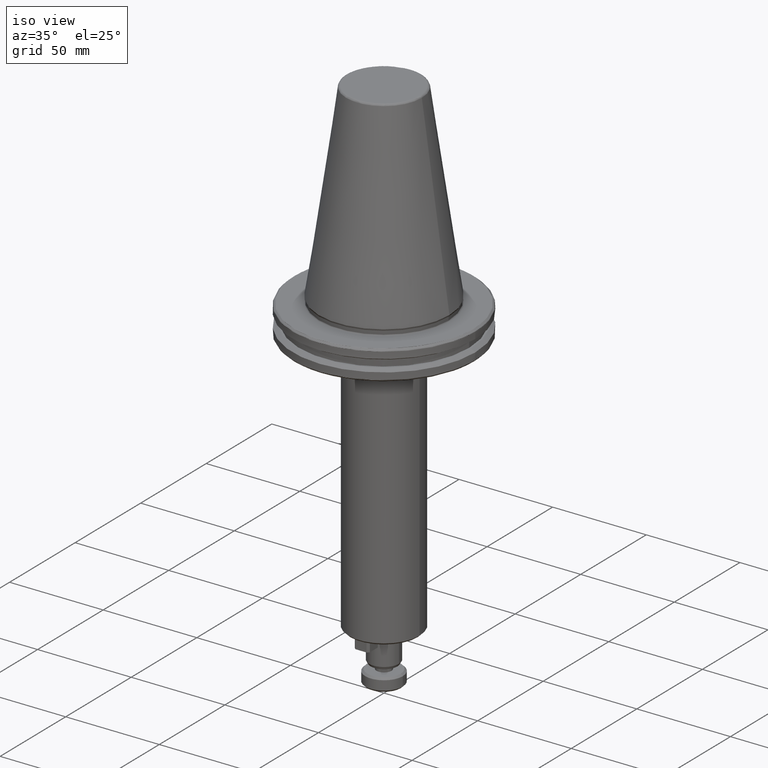
[diagram: clean part render]
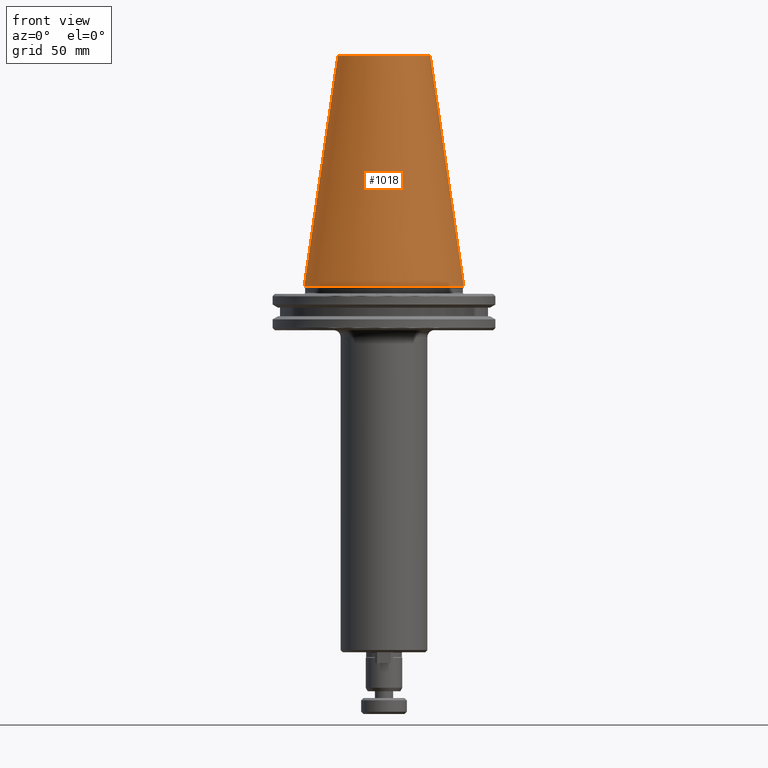
[diagram: tour spotlight — one face highlighted and labeled with its STEP entity id]
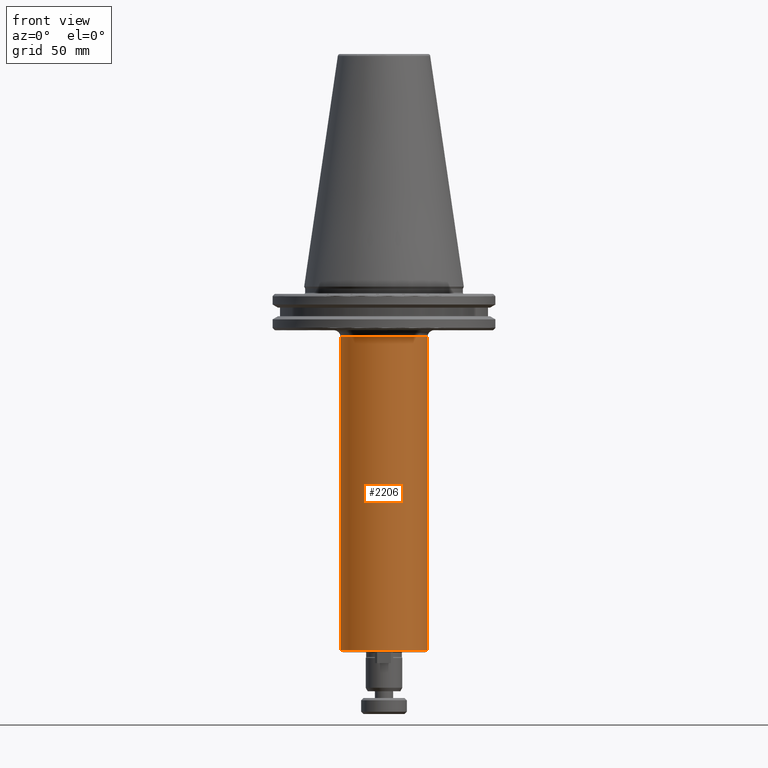
[diagram: tour spotlight — one face highlighted and labeled with its STEP entity id]
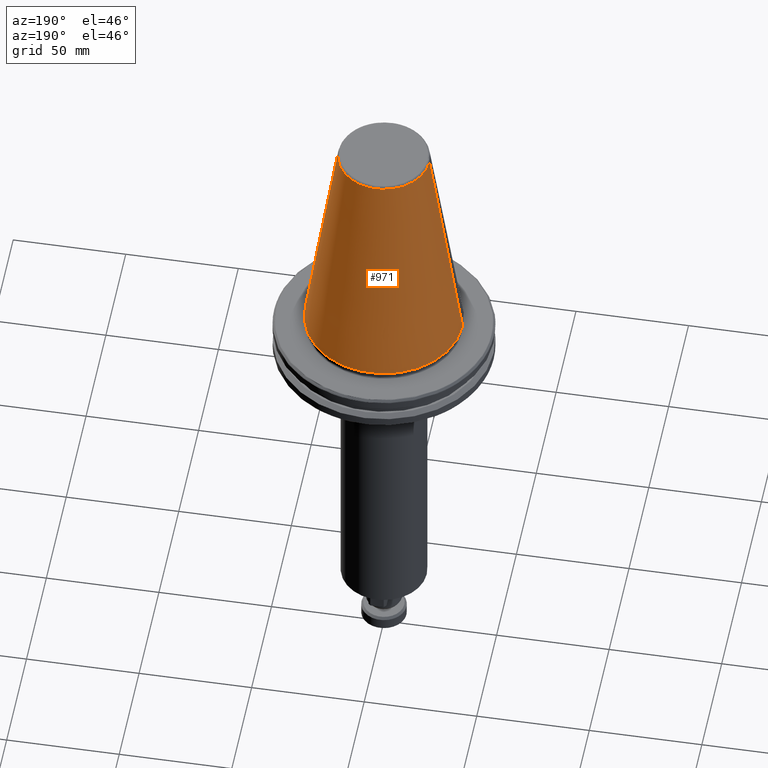
[diagram: tour spotlight — one face highlighted and labeled with its STEP entity id]
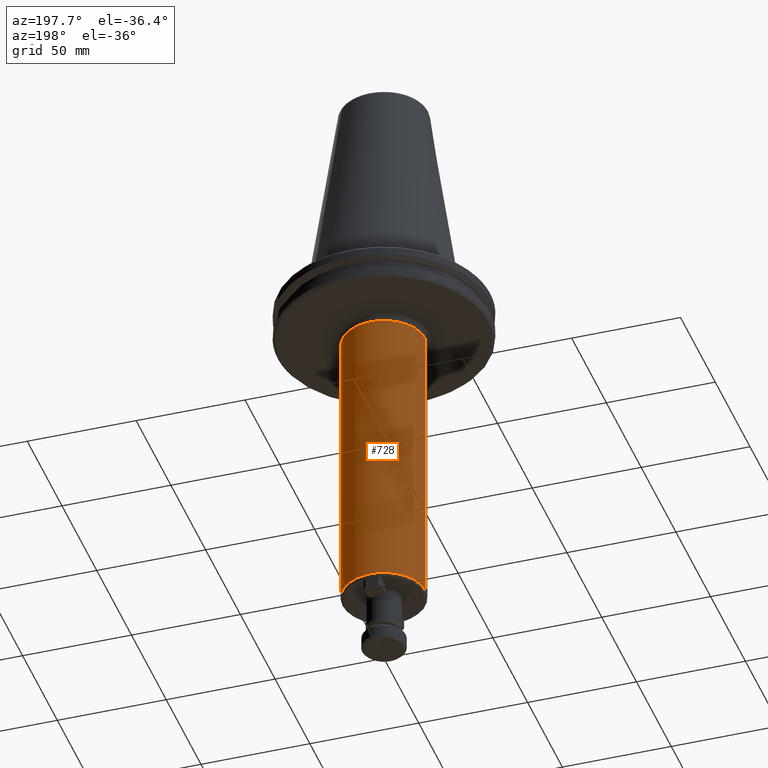
[diagram: tour spotlight — one face highlighted and labeled with its STEP entity id]
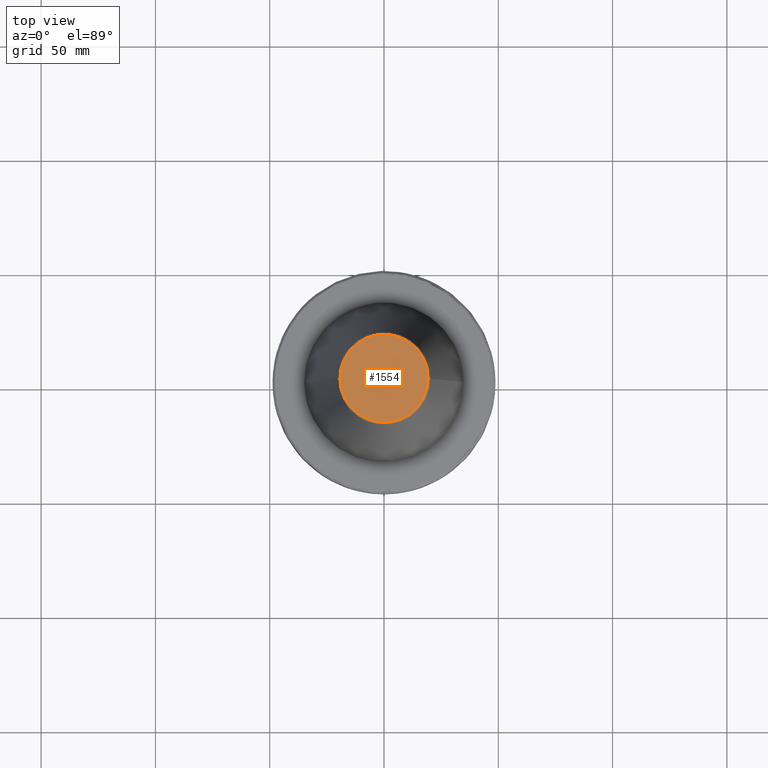
[diagram: tour spotlight — one face highlighted and labeled with its STEP entity id]
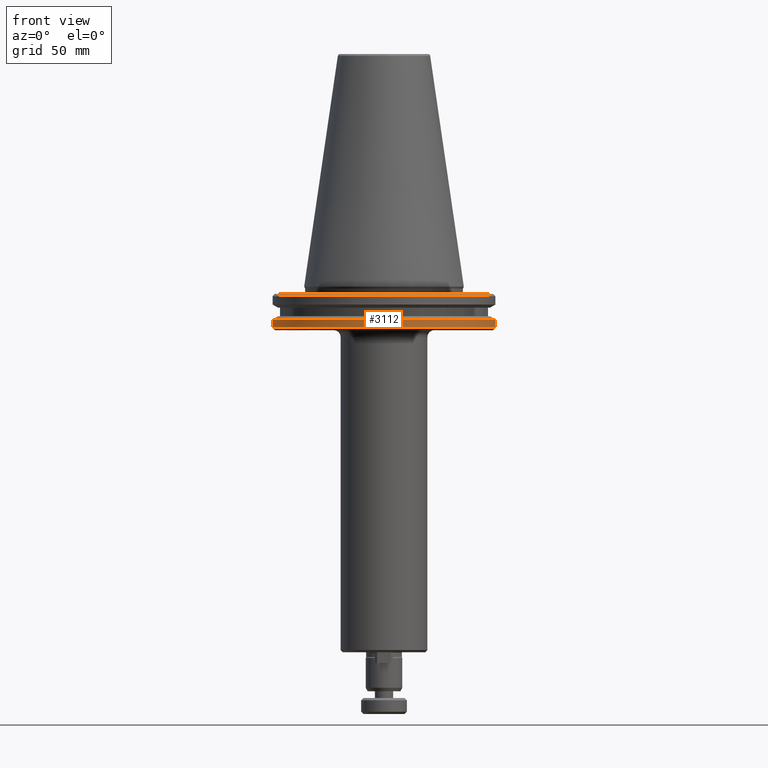
[diagram: tour spotlight — one face highlighted and labeled with its STEP entity id]
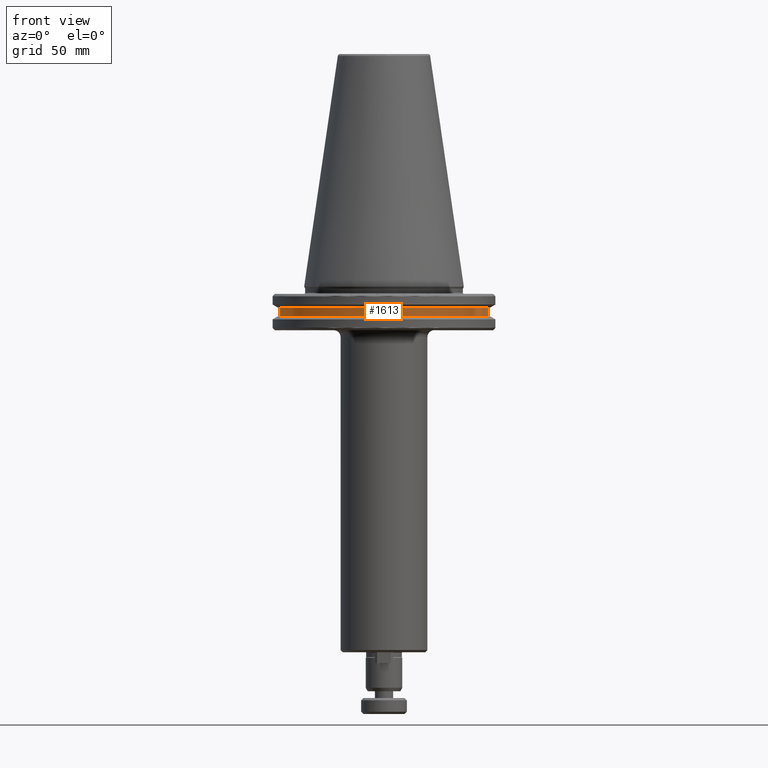
[diagram: tour spotlight — one face highlighted and labeled with its STEP entity id]
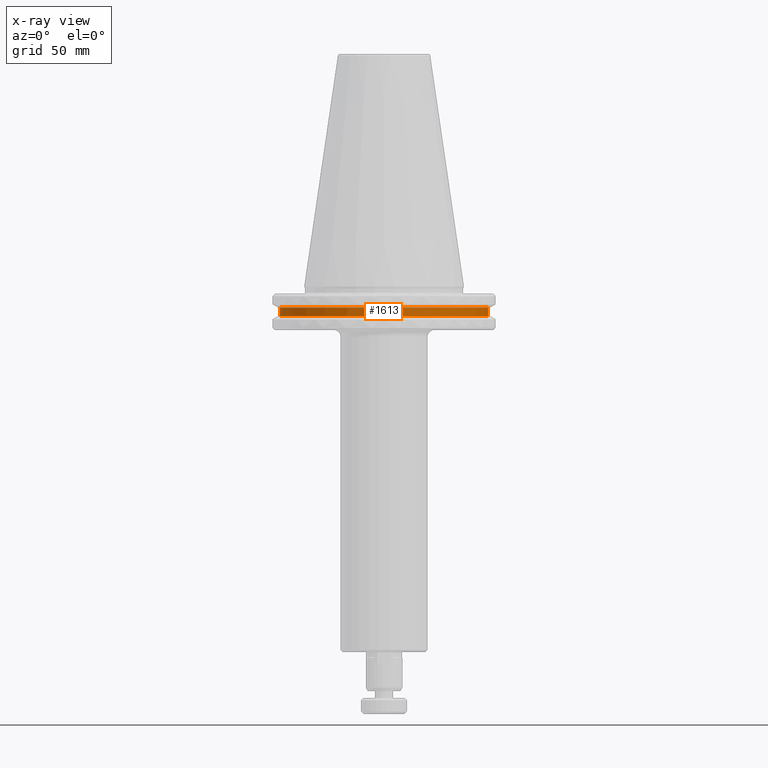
[diagram: x-ray of the same camera — body ghosted, this tour face saturated]
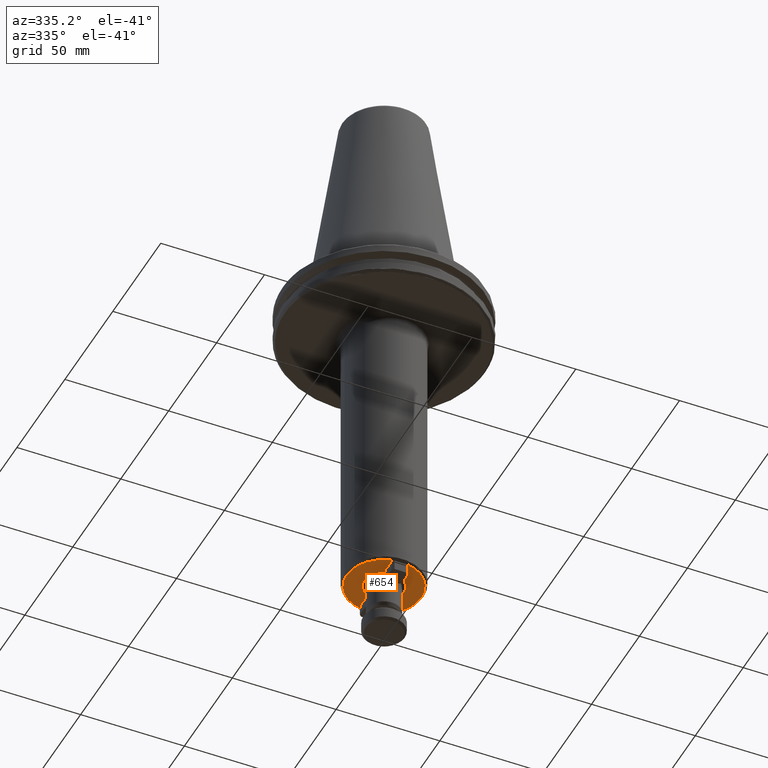
[diagram: tour spotlight — one face highlighted and labeled with its STEP entity id]
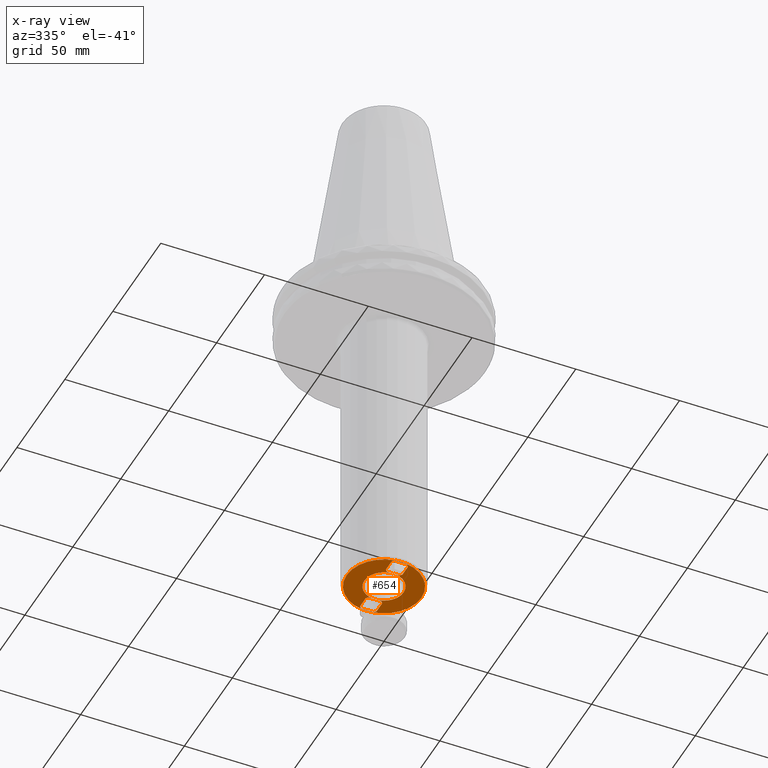
[diagram: x-ray of the same camera — body ghosted, this tour face saturated]
A machine part: a face-by-face anatomy tour. The part has 105 B-rep faces; the first image is the clean iso view, then the 8 largest visible faces are spotlighted one at a time (largest first), each with its STEP entity span.

Face 1 — front view, entity #1018. In plain terms, the highlighted conical surface has half-angle 8.297 deg.
Definition (entity closure, byte-faithful):
#87 = CARTESIAN_POINT ( 'NONE',  ( 0.0000000000000000000, 0.0000000000000000000, 100.8943082272673000 ) ) ;
#94 = CARTESIAN_POINT ( 'NONE',  ( 0.0000000000000000000, 0.0000000000000000000, -1.387778780781445700E-014 ) ) ;
#99 = VERTEX_POINT ( 'NONE', #3109 ) ;
#138 = DIRECTION ( 'NONE',  ( 0.0000000000000000000, 0.0000000000000000000, -1.000000000000000000 ) ) ;
#223 = CIRCLE ( 'NONE', #1486, 34.92499999999999700 ) ;
#252 = DIRECTION ( 'NONE',  ( -0.0000000000000000000, -0.0000000000000000000, 1.000000000000000000 ) ) ;
#293 = LINE ( 'NONE', #3301, #2583 ) ;
#322 = CARTESIAN_POINT ( 'NONE',  ( 20.21110778703758000, 3.376112895941951000E-015, 100.8943082272673000 ) ) ;
#407 = DIRECTION ( 'NONE',  ( 0.0000000000000000000, 0.0000000000000000000, -1.000000000000000000 ) ) ;
#430 = LINE ( 'NONE', #3472, #3566 ) ;
#455 = DIRECTION ( 'NONE',  ( -0.1443082272673069400, 0.0000000000000000000, -0.9895327864921743500 ) ) ;
#550 = VERTEX_POINT ( 'NONE', #1738 ) ;
#696 = DIRECTION ( 'NONE',  ( -1.000000000000000000, 0.0000000000000000000, 0.0000000000000000000 ) ) ;
#736 = VERTEX_POINT ( 'NONE', #322 ) ;
#870 = ORIENTED_EDGE ( 'NONE', *, *, #3825, .T. ) ;
#896 = EDGE_LOOP ( 'NONE', ( #1398, #3670, #870, #903 ) ) ;
#903 = ORIENTED_EDGE ( 'NONE', *, *, #2180, .T. ) ;
#927 = AXIS2_PLACEMENT_3D ( 'NONE', #94, #407, #696 ) ;
#1018 = ADVANCED_FACE ( 'NONE', ( #2692 ), #3227, .T. ) ;
#1398 = ORIENTED_EDGE ( 'NONE', *, *, #3685, .F. ) ;
#1486 = AXIS2_PLACEMENT_3D ( 'NONE', #2028, #252, #2332 ) ;
#1738 = CARTESIAN_POINT ( 'NONE',  ( -20.21110778703758000, 0.0000000000000000000, 100.8943082272673000 ) ) ;
#2028 = CARTESIAN_POINT ( 'NONE',  ( 0.0000000000000000000, 0.0000000000000000000, 0.0000000000000000000 ) ) ;
#2180 = EDGE_CURVE ( 'NONE', #99, #3422, #223, .T. ) ;
#2332 = DIRECTION ( 'NONE',  ( -1.000000000000000000, 0.0000000000000000000, 0.0000000000000000000 ) ) ;
#2499 = CARTESIAN_POINT ( 'NONE',  ( 34.92500000000000400, 0.0000000000000000000, 0.0000000000000000000 ) ) ;
#2556 = EDGE_CURVE ( 'NONE', #736, #550, #2797, .T. ) ;
#2583 = VECTOR ( 'NONE', #3606, 1000.000000000000000 ) ;
#2692 = FACE_OUTER_BOUND ( 'NONE', #896, .T. ) ;
#2797 = CIRCLE ( 'NONE', #3488, 20.21110778703758000 ) ;
#3109 = CARTESIAN_POINT ( 'NONE',  ( -34.92500000000000400, 4.277078946022131700E-015, 0.0000000000000000000 ) ) ;
#3227 = CONICAL_SURFACE ( 'NONE', #927, 34.92499999999999700, 0.1448138465474189400 ) ;
#3301 = CARTESIAN_POINT ( 'NONE',  ( 34.92499999999999700, 4.277078946022130900E-015, -1.387778780781445700E-014 ) ) ;
#3422 = VERTEX_POINT ( 'NONE', #2499 ) ;
#3472 = CARTESIAN_POINT ( 'NONE',  ( -34.92499999999999700, 0.0000000000000000000, -1.387778780781445700E-014 ) ) ;
#3488 = AXIS2_PLACEMENT_3D ( 'NONE', #87, #138, #3719 ) ;
#3566 = VECTOR ( 'NONE', #455, 1000.000000000000000 ) ;
#3606 = DIRECTION ( 'NONE',  ( 0.1443082272673069400, 1.767266086135362400E-017, -0.9895327864921743500 ) ) ;
#3670 = ORIENTED_EDGE ( 'NONE', *, *, #2556, .T. ) ;
#3685 = EDGE_CURVE ( 'NONE', #736, #3422, #293, .T. ) ;
#3719 = DIRECTION ( 'NONE',  ( -1.000000000000000000, 0.0000000000000000000, 0.0000000000000000000 ) ) ;
#3825 = EDGE_CURVE ( 'NONE', #550, #99, #430, .T. ) ;

Face 2 — front view, entity #2206. In plain terms, the highlighted cylindrical surface (partial cylindrical patch) has radius 19 mm, axis along (0, 0, 1).
Definition (entity closure, byte-faithful):
#6 = DIRECTION ( 'NONE',  ( 0.0000000000000000000, 0.0000000000000000000, 1.000000000000000000 ) ) ;
#177 = ORIENTED_EDGE ( 'NONE', *, *, #2099, .T. ) ;
#210 = ORIENTED_EDGE ( 'NONE', *, *, #3318, .T. ) ;
#418 = VERTEX_POINT ( 'NONE', #510 ) ;
#510 = CARTESIAN_POINT ( 'NONE',  ( 19.00000000000000000, 0.0000000000000000000, -22.10000000000000500 ) ) ;
#536 = LINE ( 'NONE', #2092, #2824 ) ;
#710 = AXIS2_PLACEMENT_3D ( 'NONE', #1753, #3889, #3896 ) ;
#711 = ORIENTED_EDGE ( 'NONE', *, *, #2961, .T. ) ;
#737 = VERTEX_POINT ( 'NONE', #2405 ) ;
#944 = CARTESIAN_POINT ( 'NONE',  ( -19.00000000000057200, 2.326828918380041200E-015, -159.0000000000027300 ) ) ;
#1181 = DIRECTION ( 'NONE',  ( 0.0000000000000000000, 0.0000000000000000000, 1.000000000000000000 ) ) ;
#1192 = CARTESIAN_POINT ( 'NONE',  ( 0.0000000000000000000, 0.0000000000000000000, -22.10000000000000500 ) ) ;
#1345 = CARTESIAN_POINT ( 'NONE',  ( 19.00000000000057200, 0.0000000000000000000, -159.0000000000027300 ) ) ;
#1385 = DIRECTION ( 'NONE',  ( -0.0000000000000000000, -0.0000000000000000000, 1.000000000000000000 ) ) ;
#1438 = CYLINDRICAL_SURFACE ( 'NONE', #710, 19.00000000000000000 ) ;
#1484 = DIRECTION ( 'NONE',  ( -1.000000000000000000, 0.0000000000000000000, 0.0000000000000000000 ) ) ;
#1753 = CARTESIAN_POINT ( 'NONE',  ( 0.0000000000000000000, 0.0000000000000000000, 0.0000000000000000000 ) ) ;
#1841 = VERTEX_POINT ( 'NONE', #944 ) ;
#1969 = VERTEX_POINT ( 'NONE', #1345 ) ;
#2092 = CARTESIAN_POINT ( 'NONE',  ( 19.00000000000000000, 0.0000000000000000000, 0.0000000000000000000 ) ) ;
#2099 = EDGE_CURVE ( 'NONE', #1841, #1969, #3027, .T. ) ;
#2112 = ORIENTED_EDGE ( 'NONE', *, *, #2932, .F. ) ;
#2206 = ADVANCED_FACE ( 'NONE', ( #3886 ), #1438, .T. ) ;
#2405 = CARTESIAN_POINT ( 'NONE',  ( -19.00000000000000000, 2.326828918379971000E-015, -22.10000000000000500 ) ) ;
#2460 = VECTOR ( 'NONE', #1181, 1000.000000000000000 ) ;
#2488 = AXIS2_PLACEMENT_3D ( 'NONE', #1192, #3322, #1484 ) ;
#2560 = LINE ( 'NONE', #2671, #2460 ) ;
#2658 = AXIS2_PLACEMENT_3D ( 'NONE', #3207, #1385, #3525 ) ;
#2671 = CARTESIAN_POINT ( 'NONE',  ( -19.00000000000000000, 2.326828918379971000E-015, 0.0000000000000000000 ) ) ;
#2824 = VECTOR ( 'NONE', #6, 1000.000000000000000 ) ;
#2932 = EDGE_CURVE ( 'NONE', #1841, #737, #2560, .T. ) ;
#2961 = EDGE_CURVE ( 'NONE', #418, #737, #3300, .T. ) ;
#3027 = CIRCLE ( 'NONE', #2658, 19.00000000000057200 ) ;
#3207 = CARTESIAN_POINT ( 'NONE',  ( 0.0000000000000000000, 0.0000000000000000000, -159.0000000000027300 ) ) ;
#3300 = CIRCLE ( 'NONE', #2488, 19.00000000000000000 ) ;
#3318 = EDGE_CURVE ( 'NONE', #1969, #418, #536, .T. ) ;
#3322 = DIRECTION ( 'NONE',  ( 0.0000000000000000000, 0.0000000000000000000, -1.000000000000000000 ) ) ;
#3525 = DIRECTION ( 'NONE',  ( 1.000000000000000000, 0.0000000000000000000, 0.0000000000000000000 ) ) ;
#3886 = FACE_OUTER_BOUND ( 'NONE', #3918, .T. ) ;
#3889 = DIRECTION ( 'NONE',  ( 0.0000000000000000000, 0.0000000000000000000, 1.000000000000000000 ) ) ;
#3896 = DIRECTION ( 'NONE',  ( 1.000000000000000000, 0.0000000000000000000, 0.0000000000000000000 ) ) ;
#3918 = EDGE_LOOP ( 'NONE', ( #2112, #177, #210, #711 ) ) ;

Face 3 — auxiliary view, entity #971. In plain terms, the highlighted conical surface has half-angle 8.297 deg.
Definition (entity closure, byte-faithful):
#37 = CARTESIAN_POINT ( 'NONE',  ( 0.0000000000000000000, 0.0000000000000000000, -1.387778780781445700E-014 ) ) ;
#51 = EDGE_CURVE ( 'NONE', #550, #736, #161, .T. ) ;
#99 = VERTEX_POINT ( 'NONE', #3109 ) ;
#161 = CIRCLE ( 'NONE', #2033, 20.21110778703758000 ) ;
#293 = LINE ( 'NONE', #3301, #2583 ) ;
#322 = CARTESIAN_POINT ( 'NONE',  ( 20.21110778703758000, 3.376112895941951000E-015, 100.8943082272673000 ) ) ;
#430 = LINE ( 'NONE', #3472, #3566 ) ;
#455 = DIRECTION ( 'NONE',  ( -0.1443082272673069400, 0.0000000000000000000, -0.9895327864921743500 ) ) ;
#550 = VERTEX_POINT ( 'NONE', #1738 ) ;
#736 = VERTEX_POINT ( 'NONE', #322 ) ;
#864 = CARTESIAN_POINT ( 'NONE',  ( 0.0000000000000000000, 0.0000000000000000000, 100.8943082272673000 ) ) ;
#971 = ADVANCED_FACE ( 'NONE', ( #1870 ), #1788, .T. ) ;
#1057 = AXIS2_PLACEMENT_3D ( 'NONE', #37, #1566, #3080 ) ;
#1395 = ORIENTED_EDGE ( 'NONE', *, *, #51, .T. ) ;
#1479 = DIRECTION ( 'NONE',  ( -1.000000000000000000, 0.0000000000000000000, 0.0000000000000000000 ) ) ;
#1525 = DIRECTION ( 'NONE',  ( -0.0000000000000000000, -0.0000000000000000000, 1.000000000000000000 ) ) ;
#1566 = DIRECTION ( 'NONE',  ( 0.0000000000000000000, 0.0000000000000000000, -1.000000000000000000 ) ) ;
#1738 = CARTESIAN_POINT ( 'NONE',  ( -20.21110778703758000, 0.0000000000000000000, 100.8943082272673000 ) ) ;
#1788 = CONICAL_SURFACE ( 'NONE', #1057, 34.92499999999999700, 0.1448138465474189400 ) ;
#1870 = FACE_OUTER_BOUND ( 'NONE', #2473, .T. ) ;
#2033 = AXIS2_PLACEMENT_3D ( 'NONE', #864, #3352, #1479 ) ;
#2305 = AXIS2_PLACEMENT_3D ( 'NONE', #3355, #1525, #3660 ) ;
#2423 = ORIENTED_EDGE ( 'NONE', *, *, #3825, .F. ) ;
#2473 = EDGE_LOOP ( 'NONE', ( #1395, #2940, #2742, #2423 ) ) ;
#2499 = CARTESIAN_POINT ( 'NONE',  ( 34.92500000000000400, 0.0000000000000000000, 0.0000000000000000000 ) ) ;
#2583 = VECTOR ( 'NONE', #3606, 1000.000000000000000 ) ;
#2742 = ORIENTED_EDGE ( 'NONE', *, *, #3031, .T. ) ;
#2940 = ORIENTED_EDGE ( 'NONE', *, *, #3685, .T. ) ;
#3031 = EDGE_CURVE ( 'NONE', #3422, #99, #3196, .T. ) ;
#3080 = DIRECTION ( 'NONE',  ( -1.000000000000000000, 0.0000000000000000000, 0.0000000000000000000 ) ) ;
#3109 = CARTESIAN_POINT ( 'NONE',  ( -34.92500000000000400, 4.277078946022131700E-015, 0.0000000000000000000 ) ) ;
#3196 = CIRCLE ( 'NONE', #2305, 34.92499999999999700 ) ;
#3301 = CARTESIAN_POINT ( 'NONE',  ( 34.92499999999999700, 4.277078946022130900E-015, -1.387778780781445700E-014 ) ) ;
#3352 = DIRECTION ( 'NONE',  ( 0.0000000000000000000, 0.0000000000000000000, -1.000000000000000000 ) ) ;
#3355 = CARTESIAN_POINT ( 'NONE',  ( 0.0000000000000000000, 0.0000000000000000000, 0.0000000000000000000 ) ) ;
#3422 = VERTEX_POINT ( 'NONE', #2499 ) ;
#3472 = CARTESIAN_POINT ( 'NONE',  ( -34.92499999999999700, 0.0000000000000000000, -1.387778780781445700E-014 ) ) ;
#3566 = VECTOR ( 'NONE', #455, 1000.000000000000000 ) ;
#3606 = DIRECTION ( 'NONE',  ( 0.1443082272673069400, 1.767266086135362400E-017, -0.9895327864921743500 ) ) ;
#3660 = DIRECTION ( 'NONE',  ( -1.000000000000000000, 0.0000000000000000000, 0.0000000000000000000 ) ) ;
#3685 = EDGE_CURVE ( 'NONE', #736, #3422, #293, .T. ) ;
#3825 = EDGE_CURVE ( 'NONE', #550, #99, #430, .T. ) ;

Face 4 — auxiliary view, entity #728. In plain terms, the highlighted cylindrical surface (partial cylindrical patch) has radius 19 mm, axis along (0, 0, 1).
Definition (entity closure, byte-faithful):
#6 = DIRECTION ( 'NONE',  ( 0.0000000000000000000, 0.0000000000000000000, 1.000000000000000000 ) ) ;
#418 = VERTEX_POINT ( 'NONE', #510 ) ;
#510 = CARTESIAN_POINT ( 'NONE',  ( 19.00000000000000000, 0.0000000000000000000, -22.10000000000000500 ) ) ;
#536 = LINE ( 'NONE', #2092, #2824 ) ;
#623 = DIRECTION ( 'NONE',  ( -0.0000000000000000000, -0.0000000000000000000, 1.000000000000000000 ) ) ;
#652 = ORIENTED_EDGE ( 'NONE', *, *, #2990, .T. ) ;
#699 = CIRCLE ( 'NONE', #2348, 19.00000000000000000 ) ;
#728 = ADVANCED_FACE ( 'NONE', ( #3179 ), #2981, .T. ) ;
#737 = VERTEX_POINT ( 'NONE', #2405 ) ;
#895 = DIRECTION ( 'NONE',  ( 0.0000000000000000000, 0.0000000000000000000, 1.000000000000000000 ) ) ;
#944 = CARTESIAN_POINT ( 'NONE',  ( -19.00000000000057200, 2.326828918380041200E-015, -159.0000000000027300 ) ) ;
#1066 = AXIS2_PLACEMENT_3D ( 'NONE', #1499, #895, #1210 ) ;
#1181 = DIRECTION ( 'NONE',  ( 0.0000000000000000000, 0.0000000000000000000, 1.000000000000000000 ) ) ;
#1210 = DIRECTION ( 'NONE',  ( 1.000000000000000000, 0.0000000000000000000, 0.0000000000000000000 ) ) ;
#1345 = CARTESIAN_POINT ( 'NONE',  ( 19.00000000000057200, 0.0000000000000000000, -159.0000000000027300 ) ) ;
#1499 = CARTESIAN_POINT ( 'NONE',  ( 0.0000000000000000000, 0.0000000000000000000, 0.0000000000000000000 ) ) ;
#1586 = AXIS2_PLACEMENT_3D ( 'NONE', #2409, #623, #2725 ) ;
#1726 = ORIENTED_EDGE ( 'NONE', *, *, #2932, .T. ) ;
#1799 = DIRECTION ( 'NONE',  ( 0.0000000000000000000, 0.0000000000000000000, -1.000000000000000000 ) ) ;
#1841 = VERTEX_POINT ( 'NONE', #944 ) ;
#1969 = VERTEX_POINT ( 'NONE', #1345 ) ;
#2072 = ORIENTED_EDGE ( 'NONE', *, *, #3292, .T. ) ;
#2092 = CARTESIAN_POINT ( 'NONE',  ( 19.00000000000000000, 0.0000000000000000000, 0.0000000000000000000 ) ) ;
#2245 = ORIENTED_EDGE ( 'NONE', *, *, #3318, .F. ) ;
#2348 = AXIS2_PLACEMENT_3D ( 'NONE', #3637, #1799, #3950 ) ;
#2405 = CARTESIAN_POINT ( 'NONE',  ( -19.00000000000000000, 2.326828918379971000E-015, -22.10000000000000500 ) ) ;
#2409 = CARTESIAN_POINT ( 'NONE',  ( 0.0000000000000000000, 0.0000000000000000000, -159.0000000000027300 ) ) ;
#2460 = VECTOR ( 'NONE', #1181, 1000.000000000000000 ) ;
#2560 = LINE ( 'NONE', #2671, #2460 ) ;
#2671 = CARTESIAN_POINT ( 'NONE',  ( -19.00000000000000000, 2.326828918379971000E-015, 0.0000000000000000000 ) ) ;
#2725 = DIRECTION ( 'NONE',  ( 1.000000000000000000, 0.0000000000000000000, 0.0000000000000000000 ) ) ;
#2824 = VECTOR ( 'NONE', #6, 1000.000000000000000 ) ;
#2932 = EDGE_CURVE ( 'NONE', #1841, #737, #2560, .T. ) ;
#2981 = CYLINDRICAL_SURFACE ( 'NONE', #1066, 19.00000000000000000 ) ;
#2990 = EDGE_CURVE ( 'NONE', #737, #418, #699, .T. ) ;
#3179 = FACE_OUTER_BOUND ( 'NONE', #3436, .T. ) ;
#3292 = EDGE_CURVE ( 'NONE', #1969, #1841, #3752, .T. ) ;
#3318 = EDGE_CURVE ( 'NONE', #1969, #418, #536, .T. ) ;
#3436 = EDGE_LOOP ( 'NONE', ( #2072, #1726, #652, #2245 ) ) ;
#3637 = CARTESIAN_POINT ( 'NONE',  ( 0.0000000000000000000, 0.0000000000000000000, -22.10000000000000500 ) ) ;
#3752 = CIRCLE ( 'NONE', #1586, 19.00000000000057200 ) ;
#3950 = DIRECTION ( 'NONE',  ( -1.000000000000000000, 0.0000000000000000000, 0.0000000000000000000 ) ) ;

Face 5 — top view, entity #1554. In plain terms, the highlighted planar face has unit normal (0, 0, 1).
Definition (entity closure, byte-faithful):
#59 = VERTEX_POINT ( 'NONE', #2359 ) ;
#420 = AXIS2_PLACEMENT_3D ( 'NONE', #2050, #2681, #867 ) ;
#533 = CARTESIAN_POINT ( 'NONE',  ( -19.22157500054540000, 2.378200593091452200E-015, 101.7499999999999900 ) ) ;
#867 = DIRECTION ( 'NONE',  ( 1.000000000000000000, 0.0000000000000000000, -0.0000000000000000000 ) ) ;
#899 =( BOUNDED_CURVE ( )  B_SPLINE_CURVE ( 3, ( #533, #1412, #3568, #1733 ),
 .UNSPECIFIED., .F., .F. ) 
 B_SPLINE_CURVE_WITH_KNOTS ( ( 4, 4 ),
 ( 0.0000000000000000000, 1.000000000000000000 ),
 .UNSPECIFIED. ) 
 CURVE ( )  GEOMETRIC_REPRESENTATION_ITEM ( )  RATIONAL_B_SPLINE_CURVE ( ( 1.000000000000000000, 0.3333333333333333700, 0.3333333333333333700, 1.000000000000000000 ) ) 
 REPRESENTATION_ITEM ( '' )  );
#1211 = VERTEX_POINT ( 'NONE', #3775 ) ;
#1240 = CARTESIAN_POINT ( 'NONE',  ( 19.22157500054540000, -38.44315000109079300, 101.7500000000000000 ) ) ;
#1254 = CARTESIAN_POINT ( 'NONE',  ( -19.22157500054540000, 2.378200593091452200E-015, 101.7499999999999900 ) ) ;
#1412 = CARTESIAN_POINT ( 'NONE',  ( -19.22157500054539600, 38.44315000109079300, 101.7500000000000000 ) ) ;
#1449 = EDGE_CURVE ( 'NONE', #59, #1211, #899, .T. ) ;
#1554 = ADVANCED_FACE ( 'NONE', ( #3278 ), #2973, .T. ) ;
#1579 = ORIENTED_EDGE ( 'NONE', *, *, #1449, .F. ) ;
#1598 =( BOUNDED_CURVE ( )  B_SPLINE_CURVE ( 3, ( #3052, #1240, #3065, #1254 ),
 .UNSPECIFIED., .F., .F. ) 
 B_SPLINE_CURVE_WITH_KNOTS ( ( 4, 4 ),
 ( 0.0000000000000000000, 1.000000000000000000 ),
 .UNSPECIFIED. ) 
 CURVE ( )  GEOMETRIC_REPRESENTATION_ITEM ( )  RATIONAL_B_SPLINE_CURVE ( ( 1.000000000000000000, 0.3333333333333333700, 0.3333333333333333700, 1.000000000000000000 ) ) 
 REPRESENTATION_ITEM ( '' )  );
#1733 = CARTESIAN_POINT ( 'NONE',  ( 19.22157500054540000, 0.0000000000000000000, 101.7499999999999900 ) ) ;
#2050 = CARTESIAN_POINT ( 'NONE',  ( 0.0000000000000000000, 7.346249770921763000E-014, 101.7500000000000000 ) ) ;
#2359 = CARTESIAN_POINT ( 'NONE',  ( -19.22157500054540000, 2.378200593091452200E-015, 101.7499999999999900 ) ) ;
#2396 = EDGE_CURVE ( 'NONE', #1211, #59, #1598, .T. ) ;
#2681 = DIRECTION ( 'NONE',  ( 0.0000000000000000000, 0.0000000000000000000, 1.000000000000000000 ) ) ;
#2792 = ORIENTED_EDGE ( 'NONE', *, *, #2396, .F. ) ;
#2973 = PLANE ( 'NONE',  #420 ) ;
#3052 = CARTESIAN_POINT ( 'NONE',  ( 19.22157500054540000, 0.0000000000000000000, 101.7499999999999900 ) ) ;
#3065 = CARTESIAN_POINT ( 'NONE',  ( -19.22157500054540000, -38.44315000109079300, 101.7500000000000000 ) ) ;
#3255 = EDGE_LOOP ( 'NONE', ( #1579, #2792 ) ) ;
#3278 = FACE_OUTER_BOUND ( 'NONE', #3255, .T. ) ;
#3568 = CARTESIAN_POINT ( 'NONE',  ( 19.22157500054540000, 38.44315000109079300, 101.7500000000000000 ) ) ;
#3775 = CARTESIAN_POINT ( 'NONE',  ( 19.22157500054540000, 0.0000000000000000000, 101.7499999999999900 ) ) ;

Face 6 — front view, entity #3112. In plain terms, the highlighted cylindrical surface (partial cylindrical patch) has radius 48.75 mm, axis along (0, 0, 1).
Definition (entity closure, byte-faithful):
#115 = CIRCLE ( 'NONE', #2859, 48.75000000000000000 ) ;
#216 = DIRECTION ( 'NONE',  ( 0.0000000000000000000, 0.0000000000000000000, 1.000000000000000000 ) ) ;
#281 = EDGE_CURVE ( 'NONE', #1090, #1539, #587, .T. ) ;
#310 = EDGE_LOOP ( 'NONE', ( #1611, #2954, #456, #2930, #2673, #1576 ) ) ;
#406 = VECTOR ( 'NONE', #216, 1000.000000000000000 ) ;
#456 = ORIENTED_EDGE ( 'NONE', *, *, #281, .T. ) ;
#528 = DIRECTION ( 'NONE',  ( -0.0000000000000000000, -0.0000000000000000000, 1.000000000000000000 ) ) ;
#587 = CIRCLE ( 'NONE', #1721, 48.75000000000000000 ) ;
#935 = DIRECTION ( 'NONE',  ( -0.0000000000000000000, -0.0000000000000000000, 1.000000000000000000 ) ) ;
#1075 = CARTESIAN_POINT ( 'NONE',  ( 48.75000000000000000, 0.0000000000000000000, 113.5216080541959500 ) ) ;
#1090 = VERTEX_POINT ( 'NONE', #2508 ) ;
#1167 = CARTESIAN_POINT ( 'NONE',  ( 48.75000000000000000, 0.0000000000000000000, -17.93431457505076300 ) ) ;
#1205 = CIRCLE ( 'NONE', #3469, 48.75000000000000000 ) ;
#1214 = VERTEX_POINT ( 'NONE', #1635 ) ;
#1280 = DIRECTION ( 'NONE',  ( -0.0000000000000000000, -0.0000000000000000000, 1.000000000000000000 ) ) ;
#1382 = DIRECTION ( 'NONE',  ( 0.0000000000000000000, 0.0000000000000000000, 1.000000000000000000 ) ) ;
#1450 = CARTESIAN_POINT ( 'NONE',  ( 46.87302845420868600, -13.39707817141269400, -17.93431457505076300 ) ) ;
#1470 = VERTEX_POINT ( 'NONE', #2647 ) ;
#1539 = VERTEX_POINT ( 'NONE', #1450 ) ;
#1576 = ORIENTED_EDGE ( 'NONE', *, *, #2687, .F. ) ;
#1611 = ORIENTED_EDGE ( 'NONE', *, *, #2607, .F. ) ;
#1630 = VERTEX_POINT ( 'NONE', #1167 ) ;
#1635 = CARTESIAN_POINT ( 'NONE',  ( 48.75000000000001400, 0.0000000000000000000, -14.34759526419166200 ) ) ;
#1644 = CYLINDRICAL_SURFACE ( 'NONE', #1952, 48.75000000000000000 ) ;
#1721 = AXIS2_PLACEMENT_3D ( 'NONE', #1803, #3059, #2812 ) ;
#1802 = CIRCLE ( 'NONE', #2997, 48.75000000000000000 ) ;
#1803 = CARTESIAN_POINT ( 'NONE',  ( 0.0000000000000000000, 0.0000000000000000000, -17.93431457505076300 ) ) ;
#1952 = AXIS2_PLACEMENT_3D ( 'NONE', #2626, #1382, #3534 ) ;
#1970 = DIRECTION ( 'NONE',  ( 0.0000000000000000000, 0.0000000000000000000, 1.000000000000000000 ) ) ;
#1986 = LINE ( 'NONE', #2000, #406 ) ;
#2000 = CARTESIAN_POINT ( 'NONE',  ( -48.75000000000000000, 5.970153145843347100E-015, 113.5216080541959500 ) ) ;
#2158 = VERTEX_POINT ( 'NONE', #2299 ) ;
#2296 = CARTESIAN_POINT ( 'NONE',  ( 0.0000000000000000000, 0.0000000000000000000, -17.93431457505076300 ) ) ;
#2299 = CARTESIAN_POINT ( 'NONE',  ( -48.75000000000001400, 5.970153145843347900E-015, -14.34759526419166200 ) ) ;
#2431 = FACE_OUTER_BOUND ( 'NONE', #310, .T. ) ;
#2508 = CARTESIAN_POINT ( 'NONE',  ( -46.83796378645140400, -13.51915856623728900, -17.93431457505076300 ) ) ;
#2531 = VECTOR ( 'NONE', #1970, 1000.000000000000000 ) ;
#2597 = EDGE_CURVE ( 'NONE', #1470, #1090, #1205, .T. ) ;
#2607 = EDGE_CURVE ( 'NONE', #1470, #2158, #1986, .T. ) ;
#2621 = DIRECTION ( 'NONE',  ( 1.000000000000000000, 0.0000000000000000000, 0.0000000000000000000 ) ) ;
#2626 = CARTESIAN_POINT ( 'NONE',  ( 0.0000000000000000000, 0.0000000000000000000, 113.5216080541959500 ) ) ;
#2647 = CARTESIAN_POINT ( 'NONE',  ( -48.75000000000000000, 5.970153145843347100E-015, -17.93431457505076300 ) ) ;
#2673 = ORIENTED_EDGE ( 'NONE', *, *, #3105, .T. ) ;
#2687 = EDGE_CURVE ( 'NONE', #2158, #1214, #1802, .T. ) ;
#2744 = EDGE_CURVE ( 'NONE', #1539, #1630, #115, .T. ) ;
#2748 = CARTESIAN_POINT ( 'NONE',  ( 0.0000000000000000000, 0.0000000000000000000, -14.34759526419166200 ) ) ;
#2812 = DIRECTION ( 'NONE',  ( 1.000000000000000000, 0.0000000000000000000, 0.0000000000000000000 ) ) ;
#2859 = AXIS2_PLACEMENT_3D ( 'NONE', #3097, #1280, #3413 ) ;
#2930 = ORIENTED_EDGE ( 'NONE', *, *, #2744, .T. ) ;
#2954 = ORIENTED_EDGE ( 'NONE', *, *, #2597, .T. ) ;
#2997 = AXIS2_PLACEMENT_3D ( 'NONE', #2748, #935, #3063 ) ;
#3059 = DIRECTION ( 'NONE',  ( 0.0000000000000000000, 0.0000000000000000000, 1.000000000000000000 ) ) ;
#3063 = DIRECTION ( 'NONE',  ( -1.000000000000000000, 0.0000000000000000000, 0.0000000000000000000 ) ) ;
#3097 = CARTESIAN_POINT ( 'NONE',  ( 0.0000000000000000000, 0.0000000000000000000, -17.93431457505076300 ) ) ;
#3105 = EDGE_CURVE ( 'NONE', #1630, #1214, #3565, .T. ) ;
#3112 = ADVANCED_FACE ( 'NONE', ( #2431 ), #1644, .T. ) ;
#3413 = DIRECTION ( 'NONE',  ( 1.000000000000000000, 0.0000000000000000000, 0.0000000000000000000 ) ) ;
#3469 = AXIS2_PLACEMENT_3D ( 'NONE', #2296, #528, #2621 ) ;
#3534 = DIRECTION ( 'NONE',  ( 1.000000000000000000, 0.0000000000000000000, 0.0000000000000000000 ) ) ;
#3565 = LINE ( 'NONE', #1075, #2531 ) ;

Face 7 — front view, entity #1613. An x-ray twin of the same camera follows (body ghosted, this face saturated) — the face is partly hidden behind the body. In plain terms, the highlighted cylindrical surface (partial cylindrical patch) has radius 45.5 mm, axis along (0, 0, 1).
Definition (entity closure, byte-faithful):
#84 = CARTESIAN_POINT ( 'NONE',  ( 45.50000000000000000, 0.0000000000000000000, -9.199999999999999300 ) ) ;
#296 = AXIS2_PLACEMENT_3D ( 'NONE', #1191, #3939, #3002 ) ;
#556 = EDGE_CURVE ( 'NONE', #2752, #1705, #1510, .T. ) ;
#621 = CIRCLE ( 'NONE', #1614, 45.50000000000000000 ) ;
#629 = VERTEX_POINT ( 'NONE', #3905 ) ;
#669 = ORIENTED_EDGE ( 'NONE', *, *, #3614, .T. ) ;
#784 = CARTESIAN_POINT ( 'NONE',  ( 45.50000000000000000, 0.0000000000000000000, 113.5216080541959500 ) ) ;
#1147 = CARTESIAN_POINT ( 'NONE',  ( 0.0000000000000000000, 0.0000000000000000000, -9.199999999999999300 ) ) ;
#1191 = CARTESIAN_POINT ( 'NONE',  ( 0.0000000000000000000, 0.0000000000000000000, 113.5216080541959500 ) ) ;
#1204 = CARTESIAN_POINT ( 'NONE',  ( -45.50000000000000000, 5.572142936120457100E-015, 113.5216080541959500 ) ) ;
#1270 = VECTOR ( 'NONE', #2581, 1000.000000000000000 ) ;
#1344 = LINE ( 'NONE', #1204, #3590 ) ;
#1391 = AXIS2_PLACEMENT_3D ( 'NONE', #1147, #3273, #1446 ) ;
#1446 = DIRECTION ( 'NONE',  ( 1.000000000000000000, 0.0000000000000000000, 0.0000000000000000000 ) ) ;
#1491 = DIRECTION ( 'NONE',  ( 0.0000000000000000000, 0.0000000000000000000, 1.000000000000000000 ) ) ;
#1510 = CIRCLE ( 'NONE', #1391, 45.50000000000000000 ) ;
#1613 = ADVANCED_FACE ( 'NONE', ( #3902 ), #3800, .T. ) ;
#1614 = AXIS2_PLACEMENT_3D ( 'NONE', #3328, #1491, #3630 ) ;
#1705 = VERTEX_POINT ( 'NONE', #2720 ) ;
#1897 = ORIENTED_EDGE ( 'NONE', *, *, #3265, .T. ) ;
#2085 = DIRECTION ( 'NONE',  ( 0.0000000000000000000, 0.0000000000000000000, 1.000000000000000000 ) ) ;
#2103 = ORIENTED_EDGE ( 'NONE', *, *, #2335, .F. ) ;
#2192 = ORIENTED_EDGE ( 'NONE', *, *, #556, .T. ) ;
#2335 = EDGE_CURVE ( 'NONE', #2510, #1705, #1344, .T. ) ;
#2510 = VERTEX_POINT ( 'NONE', #3489 ) ;
#2581 = DIRECTION ( 'NONE',  ( 0.0000000000000000000, 0.0000000000000000000, 1.000000000000000000 ) ) ;
#2720 = CARTESIAN_POINT ( 'NONE',  ( -45.50000000000000000, 5.572142936120457100E-015, -9.199999999999999300 ) ) ;
#2752 = VERTEX_POINT ( 'NONE', #84 ) ;
#2868 = LINE ( 'NONE', #784, #1270 ) ;
#3002 = DIRECTION ( 'NONE',  ( 1.000000000000000000, 0.0000000000000000000, 0.0000000000000000000 ) ) ;
#3265 = EDGE_CURVE ( 'NONE', #2510, #629, #621, .T. ) ;
#3273 = DIRECTION ( 'NONE',  ( -0.0000000000000000000, -0.0000000000000000000, -1.000000000000000000 ) ) ;
#3328 = CARTESIAN_POINT ( 'NONE',  ( 0.0000000000000000000, 0.0000000000000000000, -13.00000000000001100 ) ) ;
#3489 = CARTESIAN_POINT ( 'NONE',  ( -45.50000000000000000, 5.572142936120457100E-015, -13.00000000000001100 ) ) ;
#3590 = VECTOR ( 'NONE', #2085, 1000.000000000000000 ) ;
#3598 = EDGE_LOOP ( 'NONE', ( #2103, #1897, #669, #2192 ) ) ;
#3614 = EDGE_CURVE ( 'NONE', #629, #2752, #2868, .T. ) ;
#3630 = DIRECTION ( 'NONE',  ( 1.000000000000000000, 0.0000000000000000000, 0.0000000000000000000 ) ) ;
#3800 = CYLINDRICAL_SURFACE ( 'NONE', #296, 45.50000000000000000 ) ;
#3902 = FACE_OUTER_BOUND ( 'NONE', #3598, .T. ) ;
#3905 = CARTESIAN_POINT ( 'NONE',  ( 45.50000000000000000, 0.0000000000000000000, -13.00000000000001100 ) ) ;
#3939 = DIRECTION ( 'NONE',  ( 0.0000000000000000000, 0.0000000000000000000, 1.000000000000000000 ) ) ;

Face 8 — auxiliary view, entity #654. An x-ray twin of the same camera follows (body ghosted, this face saturated) — the face is partly hidden behind the body. In plain terms, the highlighted planar face has unit normal (0, -0, 1).
Definition (entity closure, byte-faithful):
#26 = VERTEX_POINT ( 'NONE', #62 ) ;
#62 = CARTESIAN_POINT ( 'NONE',  ( 2.999999999999993300, -9.500000000000001800, -160.0000000000028100 ) ) ;
#65 = EDGE_CURVE ( 'NONE', #1112, #3874, #1046, .T. ) ;
#150 = FACE_OUTER_BOUND ( 'NONE', #2995, .T. ) ;
#199 = DIRECTION ( 'NONE',  ( -0.0000000000000000000, -0.0000000000000000000, 1.000000000000000000 ) ) ;
#230 = DIRECTION ( 'NONE',  ( -1.000000000000000000, 0.0000000000000000000, 0.0000000000000000000 ) ) ;
#236 = VERTEX_POINT ( 'NONE', #2410 ) ;
#294 = VECTOR ( 'NONE', #355, 1000.000000000000100 ) ;
#295 = EDGE_CURVE ( 'NONE', #236, #2365, #1379, .T. ) ;
#303 = CARTESIAN_POINT ( 'NONE',  ( -3.000000000000004900, 9.500000000000001800, -160.0000000000028100 ) ) ;
#304 = DIRECTION ( 'NONE',  ( -0.0000000000000000000, -0.0000000000000000000, 1.000000000000000000 ) ) ;
#307 = CARTESIAN_POINT ( 'NONE',  ( -9.478000695692268000, 0.0000000000000000000, -160.0000000000028400 ) ) ;
#325 = EDGE_CURVE ( 'NONE', #1397, #1776, #2065, .T. ) ;
#355 = DIRECTION ( 'NONE',  ( 0.7071067811865474600, 0.7071067811865474600, 0.0000000000000000000 ) ) ;
#421 = CARTESIAN_POINT ( 'NONE',  ( -4.000000000000004400, -16.50000000000000000, -160.0000000000028100 ) ) ;
#470 = CARTESIAN_POINT ( 'NONE',  ( 0.0000000000000000000, 0.0000000000000000000, -160.0000000000028400 ) ) ;
#579 = CIRCLE ( 'NONE', #1094, 9.478000695692268000 ) ;
#612 = CARTESIAN_POINT ( 'NONE',  ( 1.249999999999753800, 19.25000000000021300, -160.0000000000028100 ) ) ;
#626 = ORIENTED_EDGE ( 'NONE', *, *, #1838, .T. ) ;
#654 = ADVANCED_FACE ( 'NONE', ( #3280, #150, #2443, #1750 ), #1186, .F. ) ;
#661 = VECTOR ( 'NONE', #1809, 1000.000000000000100 ) ;
#694 = ORIENTED_EDGE ( 'NONE', *, *, #325, .T. ) ;
#705 = VERTEX_POINT ( 'NONE', #307 ) ;
#744 = EDGE_CURVE ( 'NONE', #1112, #2518, #3805, .T. ) ;
#751 = CIRCLE ( 'NONE', #1241, 18.00000000000046200 ) ;
#758 = DIRECTION ( 'NONE',  ( 1.000000000000000000, 0.0000000000000000000, 0.0000000000000000000 ) ) ;
#775 = VECTOR ( 'NONE', #2795, 1000.000000000000000 ) ;
#811 = CARTESIAN_POINT ( 'NONE',  ( 0.0000000000000000000, 17.50000000000000000, -160.0000000000028100 ) ) ;
#821 = VECTOR ( 'NONE', #3441, 999.9999999999998900 ) ;
#865 = CIRCLE ( 'NONE', #2444, 18.00000000000046200 ) ;
#868 = LINE ( 'NONE', #984, #775 ) ;
#900 = CARTESIAN_POINT ( 'NONE',  ( 2.999999999999966200, 17.50000000000000000, -160.0000000000028100 ) ) ;
#904 = DIRECTION ( 'NONE',  ( -0.7071067811865474600, -0.7071067811865474600, -0.0000000000000000000 ) ) ;
#908 = CARTESIAN_POINT ( 'NONE',  ( -19.25000000000023100, -1.249999999999758200, -160.0000000000028100 ) ) ;
#910 = EDGE_CURVE ( 'NONE', #1472, #1318, #1274, .T. ) ;
#924 = CARTESIAN_POINT ( 'NONE',  ( 0.0000000000000000000, 0.0000000000000000000, -160.0000000000028400 ) ) ;
#936 = VECTOR ( 'NONE', #2794, 1000.000000000000000 ) ;
#942 = EDGE_LOOP ( 'NONE', ( #1944, #1198 ) ) ;
#949 = ORIENTED_EDGE ( 'NONE', *, *, #3648, .T. ) ;
#984 = CARTESIAN_POINT ( 'NONE',  ( 3.999999999999994700, -17.50000000000000000, -160.0000000000028100 ) ) ;
#1029 = LINE ( 'NONE', #3737, #936 ) ;
#1031 = VECTOR ( 'NONE', #2959, 1000.000000000000000 ) ;
#1035 = CARTESIAN_POINT ( 'NONE',  ( 9.478000695692268000, 1.160720321429592300E-015, -160.0000000000028400 ) ) ;
#1046 = LINE ( 'NONE', #1306, #3291 ) ;
#1062 = ORIENTED_EDGE ( 'NONE', *, *, #1524, .T. ) ;
#1094 = AXIS2_PLACEMENT_3D ( 'NONE', #1980, #199, #2278 ) ;
#1112 = VERTEX_POINT ( 'NONE', #421 ) ;
#1162 = LINE ( 'NONE', #2105, #2670 ) ;
#1186 = PLANE ( 'NONE',  #1193 ) ;
#1193 = AXIS2_PLACEMENT_3D ( 'NONE', #1475, #3617, #1782 ) ;
#1198 = ORIENTED_EDGE ( 'NONE', *, *, #3603, .T. ) ;
#1234 = VERTEX_POINT ( 'NONE', #2847 ) ;
#1235 = CARTESIAN_POINT ( 'NONE',  ( -1.249999999999786200, 19.25000000000021300, -160.0000000000028100 ) ) ;
#1239 = DIRECTION ( 'NONE',  ( 1.000000000000000000, 0.0000000000000000000, 0.0000000000000000000 ) ) ;
#1241 = AXIS2_PLACEMENT_3D ( 'NONE', #470, #2557, #758 ) ;
#1274 = LINE ( 'NONE', #1235, #2058 ) ;
#1292 = ORIENTED_EDGE ( 'NONE', *, *, #295, .T. ) ;
#1306 = CARTESIAN_POINT ( 'NONE',  ( -4.000000000000004400, -17.50000000000000000, -160.0000000000028100 ) ) ;
#1308 = CARTESIAN_POINT ( 'NONE',  ( 19.25000000000025600, -1.249999999999262100, -160.0000000000028100 ) ) ;
#1318 = VERTEX_POINT ( 'NONE', #3527 ) ;
#1351 = ORIENTED_EDGE ( 'NONE', *, *, #910, .T. ) ;
#1355 = CARTESIAN_POINT ( 'NONE',  ( -3.000000000000004400, -17.50000000000000000, -160.0000000000028100 ) ) ;
#1366 = LINE ( 'NONE', #1507, #661 ) ;
#1379 = LINE ( 'NONE', #612, #2883 ) ;
#1397 = VERTEX_POINT ( 'NONE', #2003 ) ;
#1472 = VERTEX_POINT ( 'NONE', #2943 ) ;
#1475 = CARTESIAN_POINT ( 'NONE',  ( 0.0000000000000000000, 18.00000000000046200, -160.0000000000028100 ) ) ;
#1478 = VECTOR ( 'NONE', #1672, 1000.000000000000000 ) ;
#1496 = CARTESIAN_POINT ( 'NONE',  ( -18.00000000000046200, 2.265596578422666500E-015, -160.0000000000028400 ) ) ;
#1507 = CARTESIAN_POINT ( 'NONE',  ( -12.25000000000023300, 5.750000000000227400, -160.0000000000028100 ) ) ;
#1524 = EDGE_CURVE ( 'NONE', #26, #1856, #2537, .T. ) ;
#1528 = ORIENTED_EDGE ( 'NONE', *, *, #2777, .T. ) ;
#1538 = AXIS2_PLACEMENT_3D ( 'NONE', #924, #3051, #1239 ) ;
#1600 = ORIENTED_EDGE ( 'NONE', *, *, #65, .F. ) ;
#1632 = VERTEX_POINT ( 'NONE', #303 ) ;
#1672 = DIRECTION ( 'NONE',  ( -1.000000000000000000, 0.0000000000000000000, 0.0000000000000000000 ) ) ;
#1683 = EDGE_CURVE ( 'NONE', #1856, #3874, #2977, .T. ) ;
#1722 = CARTESIAN_POINT ( 'NONE',  ( -5.750000000000231800, 12.25000000000022900, -160.0000000000028100 ) ) ;
#1729 = EDGE_CURVE ( 'NONE', #1776, #26, #1366, .T. ) ;
#1750 = FACE_BOUND ( 'NONE', #3551, .T. ) ;
#1776 = VERTEX_POINT ( 'NONE', #2730 ) ;
#1782 = DIRECTION ( 'NONE',  ( 1.000000000000000000, 0.0000000000000000000, 0.0000000000000000000 ) ) ;
#1809 = DIRECTION ( 'NONE',  ( -0.7071067811865474600, 0.7071067811865474600, -0.0000000000000000000 ) ) ;
#1824 = DIRECTION ( 'NONE',  ( -0.7071067811865378000, -0.7071067811865573400, -0.0000000000000000000 ) ) ;
#1838 = EDGE_CURVE ( 'NONE', #1234, #2749, #3698, .T. ) ;
#1856 = VERTEX_POINT ( 'NONE', #2451 ) ;
#1883 = ORIENTED_EDGE ( 'NONE', *, *, #2470, .F. ) ;
#1894 = VERTEX_POINT ( 'NONE', #3699 ) ;
#1912 = DIRECTION ( 'NONE',  ( -1.084202172485504400E-016, 1.000000000000000000, 0.0000000000000000000 ) ) ;
#1944 = ORIENTED_EDGE ( 'NONE', *, *, #3321, .T. ) ;
#1959 = VECTOR ( 'NONE', #230, 1000.000000000000000 ) ;
#1980 = CARTESIAN_POINT ( 'NONE',  ( 0.0000000000000000000, 0.0000000000000000000, -160.0000000000028400 ) ) ;
#2003 = CARTESIAN_POINT ( 'NONE',  ( 3.999999999999994700, -16.49999999999994700, -160.0000000000028100 ) ) ;
#2030 = VERTEX_POINT ( 'NONE', #1035 ) ;
#2042 = ORIENTED_EDGE ( 'NONE', *, *, #3644, .T. ) ;
#2054 = VECTOR ( 'NONE', #904, 1000.000000000000100 ) ;
#2058 = VECTOR ( 'NONE', #1824, 1000.000000000000000 ) ;
#2065 = LINE ( 'NONE', #2680, #3621 ) ;
#2076 = LINE ( 'NONE', #3188, #1478 ) ;
#2077 = CARTESIAN_POINT ( 'NONE',  ( 0.0000000000000000000, 0.0000000000000000000, -160.0000000000028400 ) ) ;
#2082 = ORIENTED_EDGE ( 'NONE', *, *, #744, .T. ) ;
#2102 = VERTEX_POINT ( 'NONE', #2881 ) ;
#2105 = CARTESIAN_POINT ( 'NONE',  ( 3.999999999999993300, -4.336808689942010300E-016, -160.0000000000028100 ) ) ;
#2207 = ORIENTED_EDGE ( 'NONE', *, *, #1729, .T. ) ;
#2236 = CARTESIAN_POINT ( 'NONE',  ( -4.000000000000006200, -10.50000000000000200, -160.0000000000028100 ) ) ;
#2278 = DIRECTION ( 'NONE',  ( 1.000000000000000000, 0.0000000000000000000, 0.0000000000000000000 ) ) ;
#2349 = VECTOR ( 'NONE', #3346, 999.9999999999998900 ) ;
#2365 = VERTEX_POINT ( 'NONE', #900 ) ;
#2373 = EDGE_CURVE ( 'NONE', #236, #2749, #1162, .T. ) ;
#2386 = DIRECTION ( 'NONE',  ( 1.000000000000000000, 0.0000000000000000000, 0.0000000000000000000 ) ) ;
#2401 = CARTESIAN_POINT ( 'NONE',  ( 12.25000000000022700, 5.750000000000232700, -160.0000000000028100 ) ) ;
#2410 = CARTESIAN_POINT ( 'NONE',  ( 3.999999999999994700, 16.49999999999997200, -160.0000000000028100 ) ) ;
#2426 = DIRECTION ( 'NONE',  ( -1.084202172485504400E-016, -1.000000000000000000, 0.0000000000000000000 ) ) ;
#2439 = CARTESIAN_POINT ( 'NONE',  ( 5.750000000000225600, 12.25000000000023400, -160.0000000000028100 ) ) ;
#2443 = FACE_BOUND ( 'NONE', #3583, .T. ) ;
#2444 = AXIS2_PLACEMENT_3D ( 'NONE', #2077, #304, #2386 ) ;
#2451 = CARTESIAN_POINT ( 'NONE',  ( -3.000000000000005300, -9.500000000000001800, -160.0000000000028100 ) ) ;
#2452 = ORIENTED_EDGE ( 'NONE', *, *, #2530, .F. ) ;
#2470 = EDGE_CURVE ( 'NONE', #3193, #2518, #868, .T. ) ;
#2518 = VERTEX_POINT ( 'NONE', #1355 ) ;
#2530 = EDGE_CURVE ( 'NONE', #1234, #1632, #2076, .T. ) ;
#2537 = LINE ( 'NONE', #3281, #1031 ) ;
#2557 = DIRECTION ( 'NONE',  ( -0.0000000000000000000, -0.0000000000000000000, 1.000000000000000000 ) ) ;
#2595 = ORIENTED_EDGE ( 'NONE', *, *, #3493, .F. ) ;
#2670 = VECTOR ( 'NONE', #2426, 1000.000000000000000 ) ;
#2680 = CARTESIAN_POINT ( 'NONE',  ( 3.999999999999994700, -17.50000000000000000, -160.0000000000028100 ) ) ;
#2689 = LINE ( 'NONE', #811, #1959 ) ;
#2730 = CARTESIAN_POINT ( 'NONE',  ( 3.999999999999994200, -10.50000000000000200, -160.0000000000028100 ) ) ;
#2749 = VERTEX_POINT ( 'NONE', #3721 ) ;
#2777 = EDGE_CURVE ( 'NONE', #3193, #1397, #2947, .T. ) ;
#2794 = DIRECTION ( 'NONE',  ( -2.168404344971008900E-016, -1.000000000000000000, 0.0000000000000000000 ) ) ;
#2795 = DIRECTION ( 'NONE',  ( -1.000000000000000000, 0.0000000000000000000, 0.0000000000000000000 ) ) ;
#2847 = CARTESIAN_POINT ( 'NONE',  ( 2.999999999999993300, 9.500000000000001800, -160.0000000000028100 ) ) ;
#2881 = CARTESIAN_POINT ( 'NONE',  ( 18.00000000000046200, 0.0000000000000000000, -160.0000000000028400 ) ) ;
#2883 = VECTOR ( 'NONE', #3631, 1000.000000000000100 ) ;
#2943 = CARTESIAN_POINT ( 'NONE',  ( -2.999999999999948000, 17.50000000000000000, -160.0000000000028100 ) ) ;
#2947 = LINE ( 'NONE', #1308, #821 ) ;
#2959 = DIRECTION ( 'NONE',  ( -1.000000000000000000, 0.0000000000000000000, 0.0000000000000000000 ) ) ;
#2968 = EDGE_CURVE ( 'NONE', #3006, #2102, #865, .T. ) ;
#2977 = LINE ( 'NONE', #2401, #2054 ) ;
#2995 = EDGE_LOOP ( 'NONE', ( #2595, #3837 ) ) ;
#3006 = VERTEX_POINT ( 'NONE', #1496 ) ;
#3051 = DIRECTION ( 'NONE',  ( -0.0000000000000000000, -0.0000000000000000000, 1.000000000000000000 ) ) ;
#3188 = CARTESIAN_POINT ( 'NONE',  ( 0.0000000000000000000, 9.500000000000001800, -160.0000000000028100 ) ) ;
#3193 = VERTEX_POINT ( 'NONE', #3290 ) ;
#3280 = FACE_BOUND ( 'NONE', #942, .T. ) ;
#3281 = CARTESIAN_POINT ( 'NONE',  ( 3.999999999999994200, -9.500000000000001800, -160.0000000000028100 ) ) ;
#3290 = CARTESIAN_POINT ( 'NONE',  ( 2.999999999999966200, -17.50000000000000000, -160.0000000000028100 ) ) ;
#3291 = VECTOR ( 'NONE', #3435, 1000.000000000000000 ) ;
#3321 = EDGE_CURVE ( 'NONE', #705, #2030, #3651, .T. ) ;
#3346 = DIRECTION ( 'NONE',  ( 0.7071067811865472400, -0.7071067811865479100, -0.0000000000000000000 ) ) ;
#3347 = ORIENTED_EDGE ( 'NONE', *, *, #2373, .F. ) ;
#3417 = EDGE_CURVE ( 'NONE', #1318, #1894, #1029, .T. ) ;
#3431 = ORIENTED_EDGE ( 'NONE', *, *, #1683, .T. ) ;
#3435 = DIRECTION ( 'NONE',  ( -2.168404344971008900E-016, 1.000000000000000000, 0.0000000000000000000 ) ) ;
#3441 = DIRECTION ( 'NONE',  ( 0.7071067811865376900, 0.7071067811865574500, 0.0000000000000000000 ) ) ;
#3493 = EDGE_CURVE ( 'NONE', #2102, #3006, #751, .T. ) ;
#3517 = VECTOR ( 'NONE', #3868, 1000.000000000000000 ) ;
#3527 = CARTESIAN_POINT ( 'NONE',  ( -4.000000000000004400, 16.49999999999991800, -160.0000000000028100 ) ) ;
#3535 = ORIENTED_EDGE ( 'NONE', *, *, #3417, .T. ) ;
#3551 = EDGE_LOOP ( 'NONE', ( #1883, #1528, #694, #2207, #1062, #3431, #1600, #2082 ) ) ;
#3583 = EDGE_LOOP ( 'NONE', ( #3347, #1292, #949, #1351, #3535, #2042, #2452, #626 ) ) ;
#3603 = EDGE_CURVE ( 'NONE', #2030, #705, #579, .T. ) ;
#3609 = LINE ( 'NONE', #1722, #3517 ) ;
#3617 = DIRECTION ( 'NONE',  ( 0.0000000000000000000, -0.0000000000000000000, 1.000000000000000000 ) ) ;
#3621 = VECTOR ( 'NONE', #1912, 1000.000000000000000 ) ;
#3631 = DIRECTION ( 'NONE',  ( -0.7071067811865474600, 0.7071067811865474600, 0.0000000000000000000 ) ) ;
#3644 = EDGE_CURVE ( 'NONE', #1894, #1632, #3609, .T. ) ;
#3648 = EDGE_CURVE ( 'NONE', #2365, #1472, #2689, .T. ) ;
#3651 = CIRCLE ( 'NONE', #1538, 9.478000695692268000 ) ;
#3698 = LINE ( 'NONE', #2439, #294 ) ;
#3699 = CARTESIAN_POINT ( 'NONE',  ( -4.000000000000005300, 10.50000000000000200, -160.0000000000028100 ) ) ;
#3721 = CARTESIAN_POINT ( 'NONE',  ( 3.999999999999994200, 10.50000000000000200, -160.0000000000028100 ) ) ;
#3737 = CARTESIAN_POINT ( 'NONE',  ( -4.000000000000008000, 8.673617379884053200E-016, -160.0000000000028100 ) ) ;
#3805 = LINE ( 'NONE', #908, #2349 ) ;
#3837 = ORIENTED_EDGE ( 'NONE', *, *, #2968, .F. ) ;
#3868 = DIRECTION ( 'NONE',  ( 0.7071067811865474600, -0.7071067811865476800, 0.0000000000000000000 ) ) ;
#3874 = VERTEX_POINT ( 'NONE', #2236 ) ;